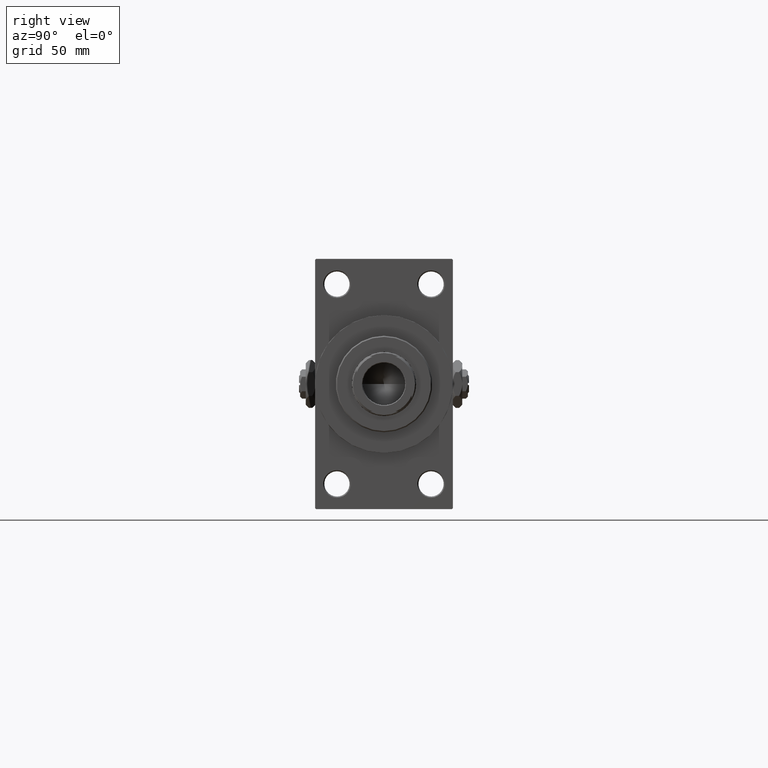
[diagram: clean part render]
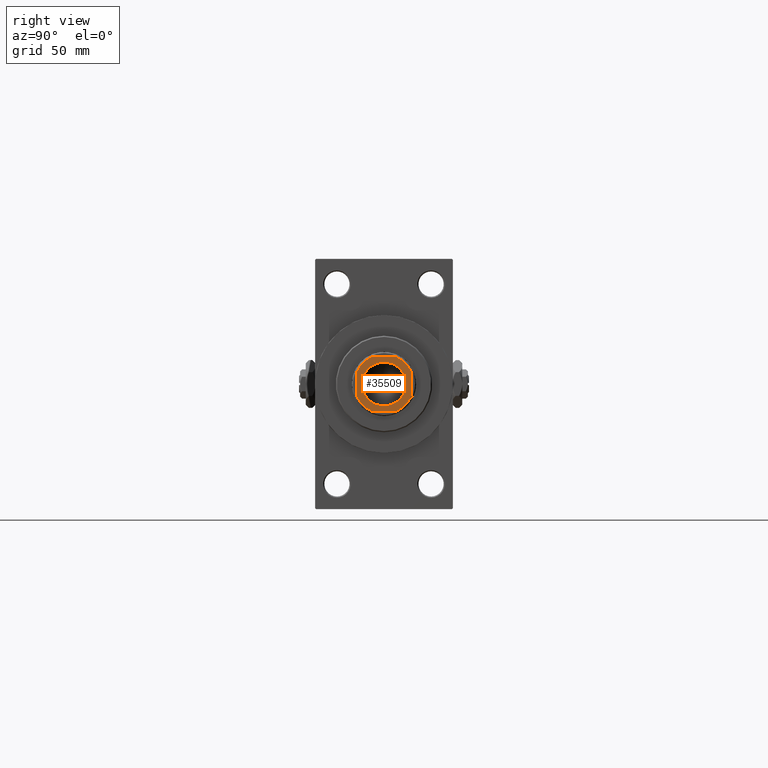
[diagram: same view with one face highlighted and labeled with its STEP entity id]
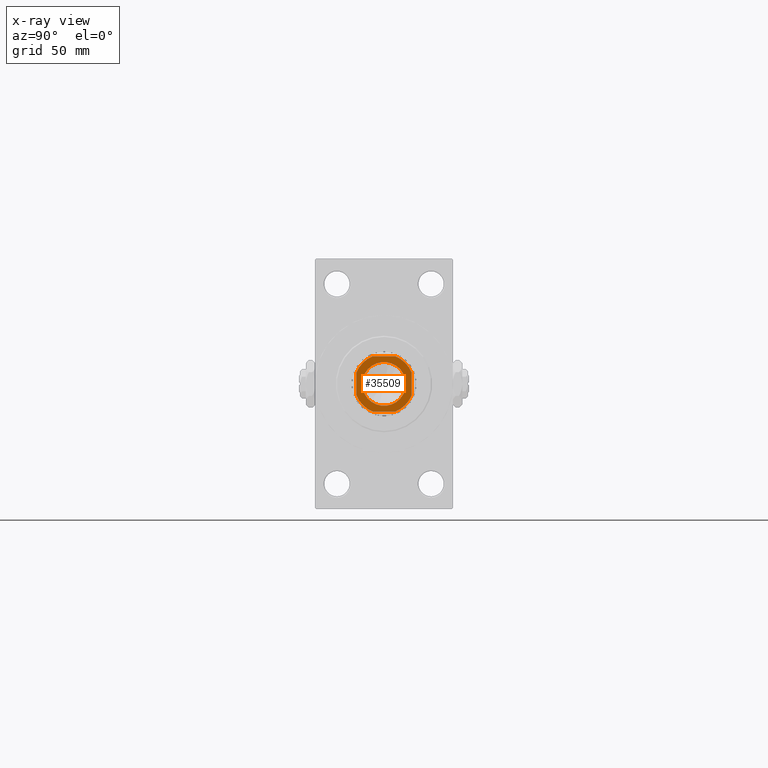
[diagram: x-ray of the same camera — body ghosted, the highlighted face saturated]
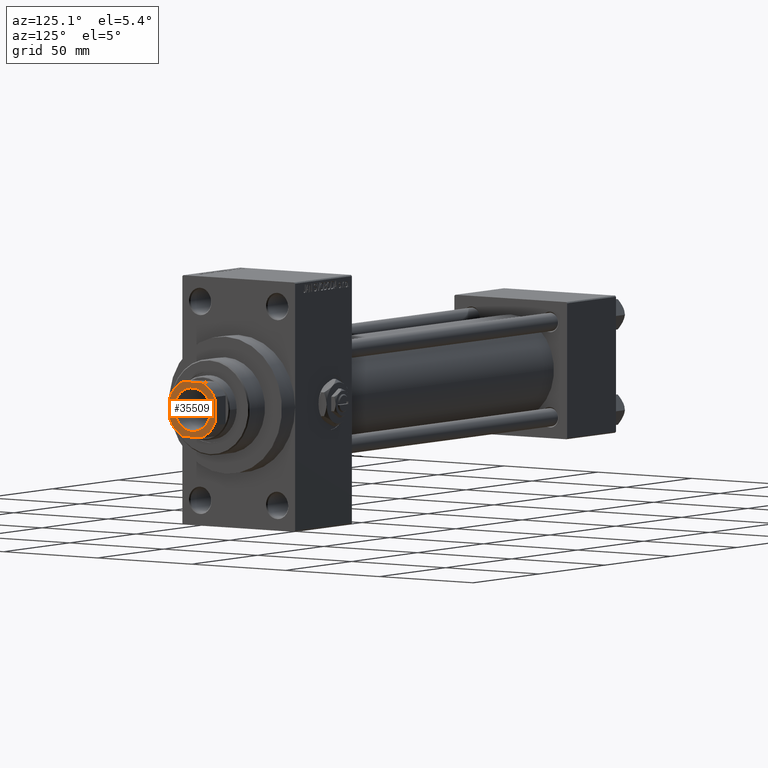
[diagram: same view with one face highlighted and labeled with its STEP entity id]
A machine part, right view. The second image highlights one B-rep face of the part: STEP entity #35509.
The next image is the same camera in x-ray: the body ghosted, the highlighted face saturated — about 0% of this face is hidden behind the body in this view.
A second angle (auxiliary view) of the same face is appended — the face is thin or edge-on in the first view.
In plain terms, the highlighted planar face has unit normal (1, 0, 0).
Its self-contained STEP definition (entity closure, byte-faithful):
#621 = VERTEX_POINT ( 'NONE', #10754 ) ;
#811 = EDGE_CURVE ( 'NONE', #11543, #31214, #25957, .T. ) ;
#1199 = EDGE_CURVE ( 'NONE', #7732, #1847, #3917, .T. ) ;
#1847 = VERTEX_POINT ( 'NONE', #25837 ) ;
#2235 = CIRCLE ( 'NONE', #34474, 9.550000000000057554 ) ;
#2342 = VECTOR ( 'NONE', #30015, 1000.000000000000000 ) ;
#2975 = DIRECTION ( 'NONE',  ( 1.000000000000000000, 0.000000000000000000, 0.000000000000000000 ) ) ;
#3280 = CARTESIAN_POINT ( 'NONE',  ( -12.00000000000000000, 4.999999999999936051, 241.0000000000000284 ) ) ;
#3842 = LINE ( 'NONE', #11451, #47375 ) ;
#3917 = LINE ( 'NONE', #30262, #2342 ) ;
#4106 = CIRCLE ( 'NONE', #45030, 12.99999999999999289 ) ;
#5493 = ORIENTED_EDGE ( 'NONE', *, *, #1199, .T. ) ;
#5832 = EDGE_CURVE ( 'NONE', #47877, #7732, #19032, .T. ) ;
#6082 = EDGE_CURVE ( 'NONE', #1847, #621, #4106, .T. ) ;
#6087 = EDGE_CURVE ( 'NONE', #621, #33124, #32716, .T. ) ;
#6494 = DIRECTION ( 'NONE',  ( -0.000000000000000000, 0.000000000000000000, 1.000000000000000000 ) ) ;
#6573 = DIRECTION ( 'NONE',  ( -0.000000000000000000, 0.000000000000000000, 1.000000000000000000 ) ) ;
#6599 = DIRECTION ( 'NONE',  ( 1.000000000000000000, 0.000000000000000000, 0.000000000000000000 ) ) ;
#7732 = VERTEX_POINT ( 'NONE', #3280 ) ;
#8147 = CARTESIAN_POINT ( 'NONE',  ( 11.99999999999999645, 11.99999999999999645, 241.0000000000000284 ) ) ;
#8713 = CARTESIAN_POINT ( 'NONE',  ( 4.999999999999795719, -12.00000000000000355, 241.0000000000000284 ) ) ;
#9416 = EDGE_CURVE ( 'NONE', #33124, #45671, #34793, .T. ) ;
#10279 = ORIENTED_EDGE ( 'NONE', *, *, #15084, .T. ) ;
#10341 = DIRECTION ( 'NONE',  ( -0.000000000000000000, 0.000000000000000000, 1.000000000000000000 ) ) ;
#10607 = CARTESIAN_POINT ( 'NONE',  ( 11.99999999999999822, 4.999999999999980460, 241.0000000000000284 ) ) ;
#10754 = CARTESIAN_POINT ( 'NONE',  ( -4.999999999999971578, -12.00000000000000355, 241.0000000000000284 ) ) ;
#10767 = DIRECTION ( 'NONE',  ( -0.000000000000000000, 0.000000000000000000, 1.000000000000000000 ) ) ;
#10985 = CARTESIAN_POINT ( 'NONE',  ( 0.000000000000000000, 0.000000000000000000, 241.0000000000000284 ) ) ;
#11451 = CARTESIAN_POINT ( 'NONE',  ( -12.00000000000000000, 11.99999999999999645, 241.0000000000000284 ) ) ;
#11543 = VERTEX_POINT ( 'NONE', #34705 ) ;
#11730 = DIRECTION ( 'NONE',  ( 0.000000000000000000, -0.000000000000000000, -1.000000000000000000 ) ) ;
#12933 = AXIS2_PLACEMENT_3D ( 'NONE', #10985, #6573, #26281 ) ;
#14487 = DIRECTION ( 'NONE',  ( 1.000000000000000000, 0.000000000000000000, 0.000000000000000000 ) ) ;
#15084 = EDGE_CURVE ( 'NONE', #42386, #19380, #38091, .T. ) ;
#15921 = CARTESIAN_POINT ( 'NONE',  ( 0.000000000000000000, 0.000000000000000000, 241.0000000000000284 ) ) ;
#17576 = EDGE_LOOP ( 'NONE', ( #36711, #27259 ) ) ;
#17688 = CARTESIAN_POINT ( 'NONE',  ( 0.000000000000000000, 0.000000000000000000, 241.0000000000000284 ) ) ;
#18139 = FACE_OUTER_BOUND ( 'NONE', #31742, .T. ) ;
#19032 = CIRCLE ( 'NONE', #30080, 12.99999999999997513 ) ;
#19380 = VERTEX_POINT ( 'NONE', #25067 ) ;
#20170 = CARTESIAN_POINT ( 'NONE',  ( 12.00000000000000178, -4.999999999999800160, 241.0000000000000284 ) ) ;
#20177 = DIRECTION ( 'NONE',  ( -0.000000000000000000, 0.000000000000000000, 1.000000000000000000 ) ) ;
#20191 = CARTESIAN_POINT ( 'NONE',  ( -4.999999999999944933, 11.99999999999999645, 241.0000000000000284 ) ) ;
#21047 = ORIENTED_EDGE ( 'NONE', *, *, #30329, .T. ) ;
#23460 = ORIENTED_EDGE ( 'NONE', *, *, #44260, .T. ) ;
#25067 = CARTESIAN_POINT ( 'NONE',  ( 4.999999999999984013, 11.99999999999999645, 241.0000000000000284 ) ) ;
#25543 = PLANE ( 'NONE',  #12933 ) ;
#25808 = DIRECTION ( 'NONE',  ( 1.000000000000000000, 0.000000000000000000, 0.000000000000000000 ) ) ;
#25837 = CARTESIAN_POINT ( 'NONE',  ( -12.00000000000000000, -4.999999999999980460, 241.0000000000000284 ) ) ;
#25957 = CIRCLE ( 'NONE', #46412, 9.550000000000057554 ) ;
#26281 = DIRECTION ( 'NONE',  ( 1.000000000000000000, 0.000000000000000000, 0.000000000000000000 ) ) ;
#26628 = DIRECTION ( 'NONE',  ( -2.891205793294678326E-16, 1.000000000000000000, -0.000000000000000000 ) ) ;
#26916 = AXIS2_PLACEMENT_3D ( 'NONE', #32854, #6494, #29404 ) ;
#27259 = ORIENTED_EDGE ( 'NONE', *, *, #811, .T. ) ;
#29404 = DIRECTION ( 'NONE',  ( 1.000000000000000000, 0.000000000000000000, 0.000000000000000000 ) ) ;
#30015 = DIRECTION ( 'NONE',  ( 7.228014483236695816E-17, -1.000000000000000000, 0.000000000000000000 ) ) ;
#30080 = AXIS2_PLACEMENT_3D ( 'NONE', #30543, #20177, #42127 ) ;
#30262 = CARTESIAN_POINT ( 'NONE',  ( -12.00000000000000000, 11.99999999999999645, 241.0000000000000284 ) ) ;
#30329 = EDGE_CURVE ( 'NONE', #19380, #47877, #3842, .T. ) ;
#30543 = CARTESIAN_POINT ( 'NONE',  ( 0.000000000000000000, 0.000000000000000000, 241.0000000000000284 ) ) ;
#31214 = VERTEX_POINT ( 'NONE', #42019 ) ;
#31742 = EDGE_LOOP ( 'NONE', ( #23460, #10279, #21047, #42604, #5493, #47180, #44364, #39863 ) ) ;
#32716 = LINE ( 'NONE', #36653, #33193 ) ;
#32854 = CARTESIAN_POINT ( 'NONE',  ( 0.000000000000000000, 0.000000000000000000, 241.0000000000000284 ) ) ;
#33124 = VERTEX_POINT ( 'NONE', #8713 ) ;
#33193 = VECTOR ( 'NONE', #25808, 1000.000000000000000 ) ;
#34474 = AXIS2_PLACEMENT_3D ( 'NONE', #44809, #41117, #14487 ) ;
#34510 = LINE ( 'NONE', #8147, #41553 ) ;
#34705 = CARTESIAN_POINT ( 'NONE',  ( -9.550000000000057554, 1.169537693185729263E-15, 241.0000000000000284 ) ) ;
#34793 = CIRCLE ( 'NONE', #26916, 12.99999999999992539 ) ;
#35509 = ADVANCED_FACE ( 'NONE', ( #36631, #18139 ), #25543, .T. ) ;
#36470 = CARTESIAN_POINT ( 'NONE',  ( 0.000000000000000000, 0.000000000000000000, 241.0000000000000284 ) ) ;
#36631 = FACE_BOUND ( 'NONE', #17576, .T. ) ;
#36653 = CARTESIAN_POINT ( 'NONE',  ( -11.99999999999999822, -12.00000000000000355, 241.0000000000000284 ) ) ;
#36711 = ORIENTED_EDGE ( 'NONE', *, *, #44505, .T. ) ;
#37080 = DIRECTION ( 'NONE',  ( -1.000000000000000000, -0.000000000000000000, -0.000000000000000000 ) ) ;
#37317 = AXIS2_PLACEMENT_3D ( 'NONE', #36470, #10341, #2975 ) ;
#38091 = CIRCLE ( 'NONE', #37317, 12.99999999999999112 ) ;
#39863 = ORIENTED_EDGE ( 'NONE', *, *, #9416, .T. ) ;
#41117 = DIRECTION ( 'NONE',  ( 0.000000000000000000, -0.000000000000000000, -1.000000000000000000 ) ) ;
#41553 = VECTOR ( 'NONE', #26628, 1000.000000000000000 ) ;
#42019 = CARTESIAN_POINT ( 'NONE',  ( 9.550000000000057554, 0.000000000000000000, 241.0000000000000284 ) ) ;
#42127 = DIRECTION ( 'NONE',  ( 1.000000000000000000, 0.000000000000000000, 0.000000000000000000 ) ) ;
#42386 = VERTEX_POINT ( 'NONE', #10607 ) ;
#42604 = ORIENTED_EDGE ( 'NONE', *, *, #5832, .T. ) ;
#44260 = EDGE_CURVE ( 'NONE', #45671, #42386, #34510, .T. ) ;
#44364 = ORIENTED_EDGE ( 'NONE', *, *, #6087, .T. ) ;
#44505 = EDGE_CURVE ( 'NONE', #31214, #11543, #2235, .T. ) ;
#44809 = CARTESIAN_POINT ( 'NONE',  ( 0.000000000000000000, 0.000000000000000000, 241.0000000000000284 ) ) ;
#45030 = AXIS2_PLACEMENT_3D ( 'NONE', #17688, #10767, #6599 ) ;
#45671 = VERTEX_POINT ( 'NONE', #20170 ) ;
#45742 = DIRECTION ( 'NONE',  ( 1.000000000000000000, 0.000000000000000000, 0.000000000000000000 ) ) ;
#46412 = AXIS2_PLACEMENT_3D ( 'NONE', #15921, #11730, #45742 ) ;
#47180 = ORIENTED_EDGE ( 'NONE', *, *, #6082, .T. ) ;
#47375 = VECTOR ( 'NONE', #37080, 1000.000000000000000 ) ;
#47877 = VERTEX_POINT ( 'NONE', #20191 ) ;